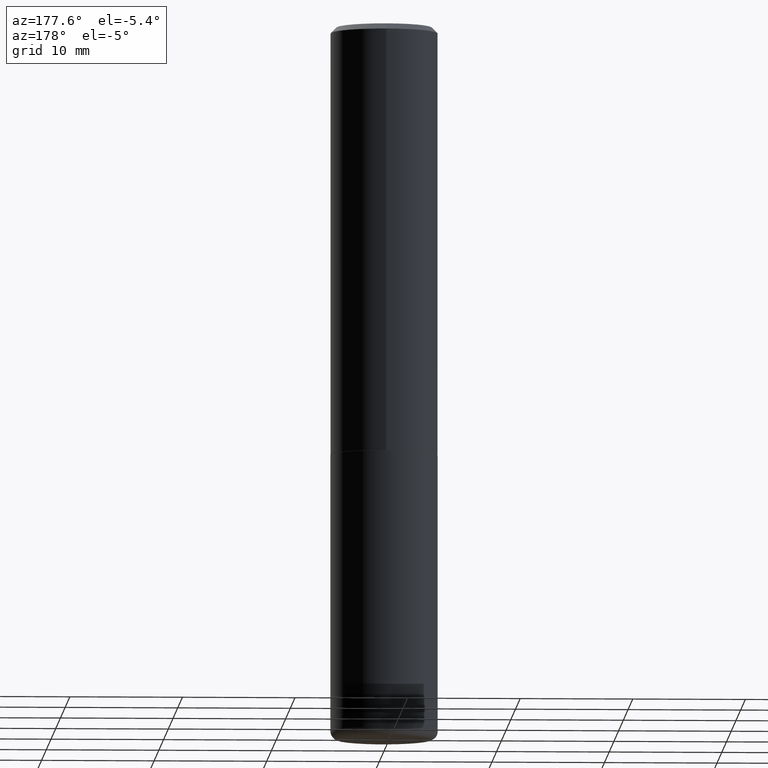
[diagram: clean part render]
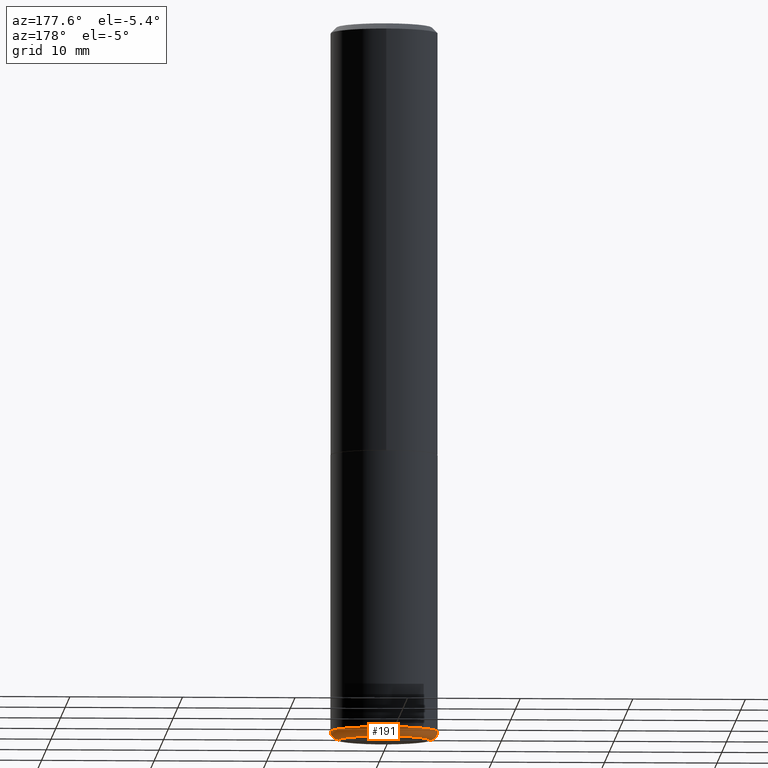
[diagram: same view with one face highlighted and labeled with its STEP entity id]
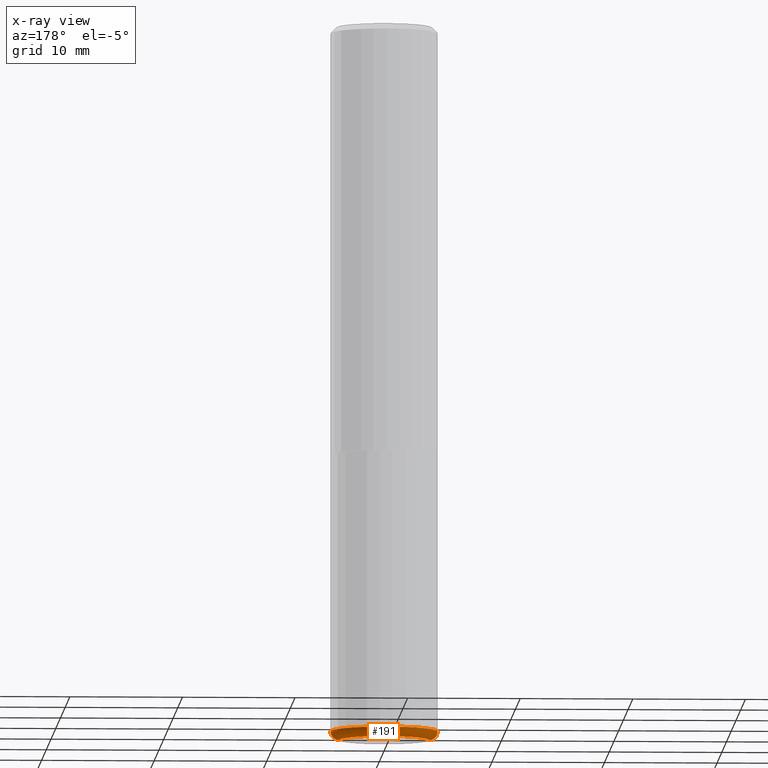
[diagram: x-ray of the same camera — body ghosted, the highlighted face saturated]
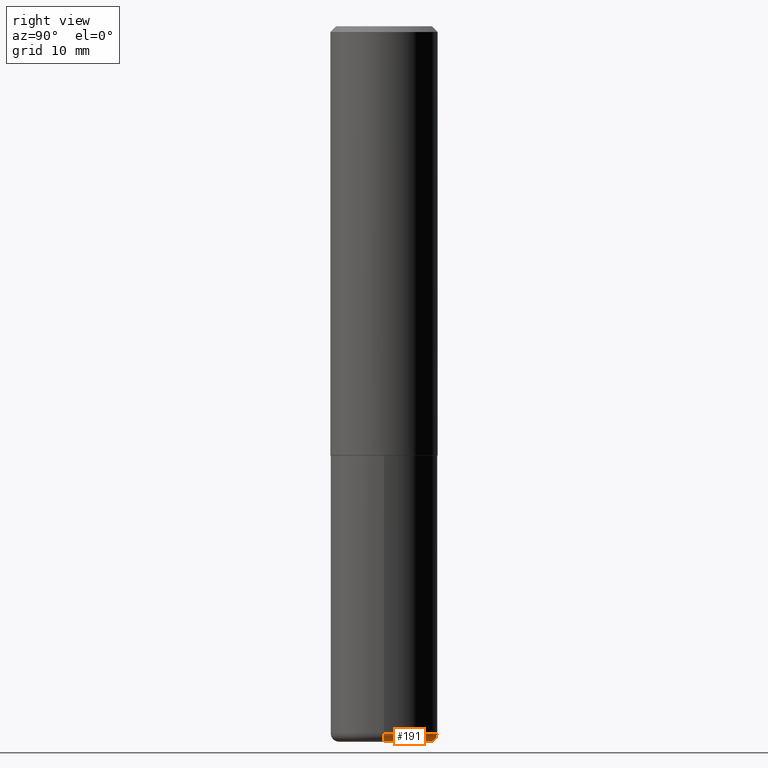
[diagram: same view with one face highlighted and labeled with its STEP entity id]
A machine part, auxiliary view. The second image highlights one B-rep face of the part: STEP entity #191.
The next image is the same camera in x-ray: the body ghosted, the highlighted face saturated — about 0% of this face is hidden behind the body in this view.
A second angle (right view) of the same face is appended — the face is thin or edge-on in the first view.
In plain terms, the highlighted toroidal blend (fillet) surface has major radius 4.0005 mm and minor (blend) radius 0.762 mm.
Its self-contained STEP definition (entity closure, byte-faithful):
#2 = AXIS2_PLACEMENT_3D ( 'NONE', #100, #399, #105 ) ;
#5 = CIRCLE ( 'NONE', #292, 0.03000000000000025910 ) ;
#10 = FACE_OUTER_BOUND ( 'NONE', #306, .T. ) ;
#27 = DIRECTION ( 'NONE',  ( -2.445468806185136597E-29, 3.491481338843145583E-15, 1.000000000000000000 ) ) ;
#41 = EDGE_CURVE ( 'NONE', #53, #332, #87, .T. ) ;
#53 = VERTEX_POINT ( 'NONE', #403 ) ;
#86 = CARTESIAN_POINT ( 'NONE',  ( 6.113672015462842613E-29, -8.728703347107866520E-15, -2.500000000000000444 ) ) ;
#87 = CIRCLE ( 'NONE', #378, 0.1875000000000000555 ) ;
#88 = CIRCLE ( 'NONE', #136, 0.03000000000000025910 ) ;
#91 = DIRECTION ( 'NONE',  ( 1.000000000000000000, -6.982962677686273021E-15, 0.000000000000000000 ) ) ;
#97 = DIRECTION ( 'NONE',  ( -2.445468806185136597E-29, 3.491481338843145583E-15, 1.000000000000000000 ) ) ;
#100 = CARTESIAN_POINT ( 'NONE',  ( 6.040307951277287977E-29, -8.623958906942569995E-15, -2.470000000000000195 ) ) ;
#105 = DIRECTION ( 'NONE',  ( 1.000000000000000000, -6.982962677686267499E-15, 4.883557194083113462E-29 ) ) ;
#116 = VERTEX_POINT ( 'NONE', #195 ) ;
#136 = AXIS2_PLACEMENT_3D ( 'NONE', #220, #142, #91 ) ;
#140 = DIRECTION ( 'NONE',  ( -1.000000000000000000, 7.105427357600994759E-15, 0.000000000000000000 ) ) ;
#142 = DIRECTION ( 'NONE',  ( -6.982962677686266711E-15, -1.000000000000000000, 3.491481338843145583E-15 ) ) ;
#191 = ADVANCED_FACE ( 'NONE', ( #10 ), #321, .T. ) ;
#195 = CARTESIAN_POINT ( 'NONE',  ( -0.1575000000000000289, -7.450644907839043165E-15, -2.500000000000000444 ) ) ;
#197 = ORIENTED_EDGE ( 'NONE', *, *, #41, .F. ) ;
#220 = CARTESIAN_POINT ( 'NONE',  ( 0.1575000000000000289, -9.723775528678158264E-15, -2.470000000000000195 ) ) ;
#224 = DIRECTION ( 'NONE',  ( 7.105427357601001859E-15, 1.000000000000000000, -3.491481338843145583E-15 ) ) ;
#251 = ORIENTED_EDGE ( 'NONE', *, *, #253, .F. ) ;
#253 = EDGE_CURVE ( 'NONE', #316, #53, #88, .T. ) ;
#255 = EDGE_CURVE ( 'NONE', #316, #116, #379, .T. ) ;
#277 = CARTESIAN_POINT ( 'NONE',  ( 6.040307951277287977E-29, -8.623958906942569995E-15, -2.470000000000000195 ) ) ;
#284 = ORIENTED_EDGE ( 'NONE', *, *, #255, .T. ) ;
#292 = AXIS2_PLACEMENT_3D ( 'NONE', #381, #224, #140 ) ;
#297 = ORIENTED_EDGE ( 'NONE', *, *, #386, .T. ) ;
#306 = EDGE_LOOP ( 'NONE', ( #284, #297, #197, #251 ) ) ;
#314 = CARTESIAN_POINT ( 'NONE',  ( -0.1875000000000001943, -7.291691277392382147E-15, -2.470000000000000195 ) ) ;
#316 = VERTEX_POINT ( 'NONE', #406 ) ;
#321 = TOROIDAL_SURFACE ( 'NONE', #2, 0.1575000000000000289, 0.03000000000000025910 ) ;
#332 = VERTEX_POINT ( 'NONE', #314 ) ;
#345 = DIRECTION ( 'NONE',  ( 1.000000000000000000, -6.982962677686267499E-15, 0.000000000000000000 ) ) ;
#353 = AXIS2_PLACEMENT_3D ( 'NONE', #86, #27, #345 ) ;
#366 = DIRECTION ( 'NONE',  ( 1.000000000000000000, -6.982962677686265922E-15, 0.000000000000000000 ) ) ;
#378 = AXIS2_PLACEMENT_3D ( 'NONE', #277, #97, #366 ) ;
#379 = CIRCLE ( 'NONE', #353, 0.1575000000000000289 ) ;
#381 = CARTESIAN_POINT ( 'NONE',  ( -0.1575000000000000289, -7.504854098120412392E-15, -2.470000000000000195 ) ) ;
#386 = EDGE_CURVE ( 'NONE', #116, #332, #5, .T. ) ;
#399 = DIRECTION ( 'NONE',  ( -2.445468806185136597E-29, 3.491481338843145583E-15, 1.000000000000000000 ) ) ;
#403 = CARTESIAN_POINT ( 'NONE',  ( 0.1875000000000001943, -9.933264409008746581E-15, -2.470000000000000195 ) ) ;
#406 = CARTESIAN_POINT ( 'NONE',  ( 0.1575000000000000289, -9.828519968843453212E-15, -2.500000000000000444 ) ) ;